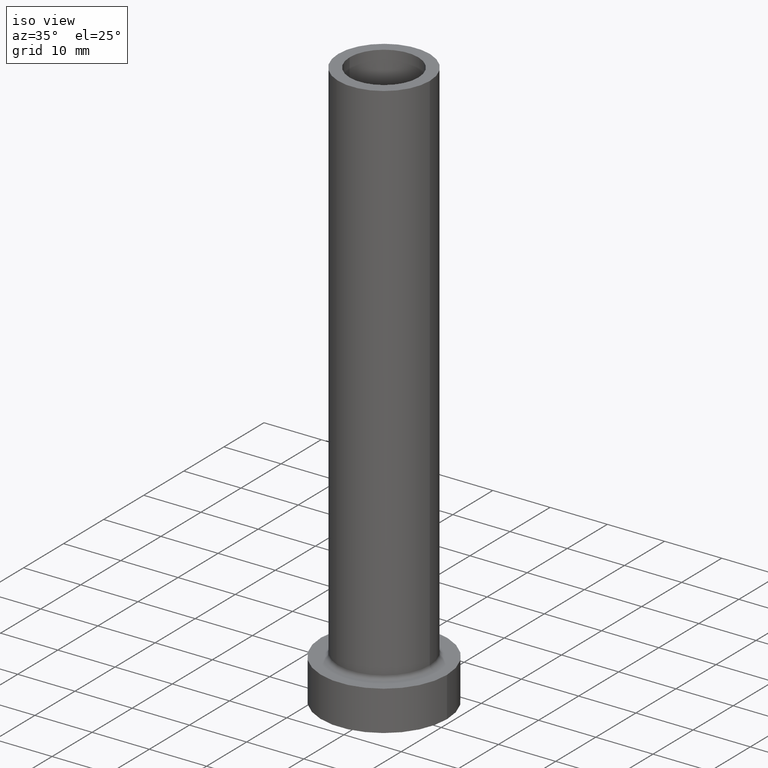
[diagram: clean part render]
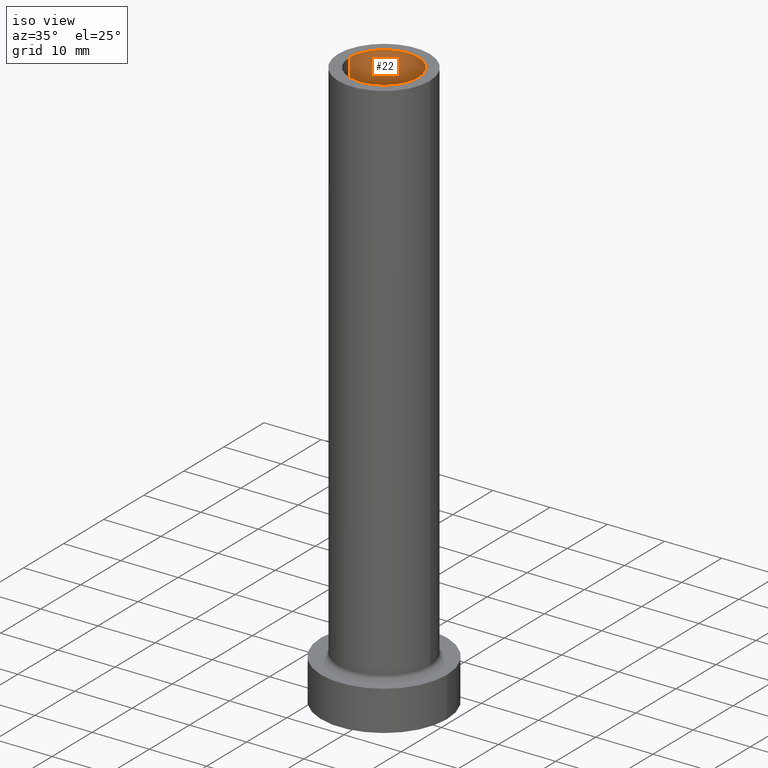
[diagram: same view with one face highlighted and labeled with its STEP entity id]
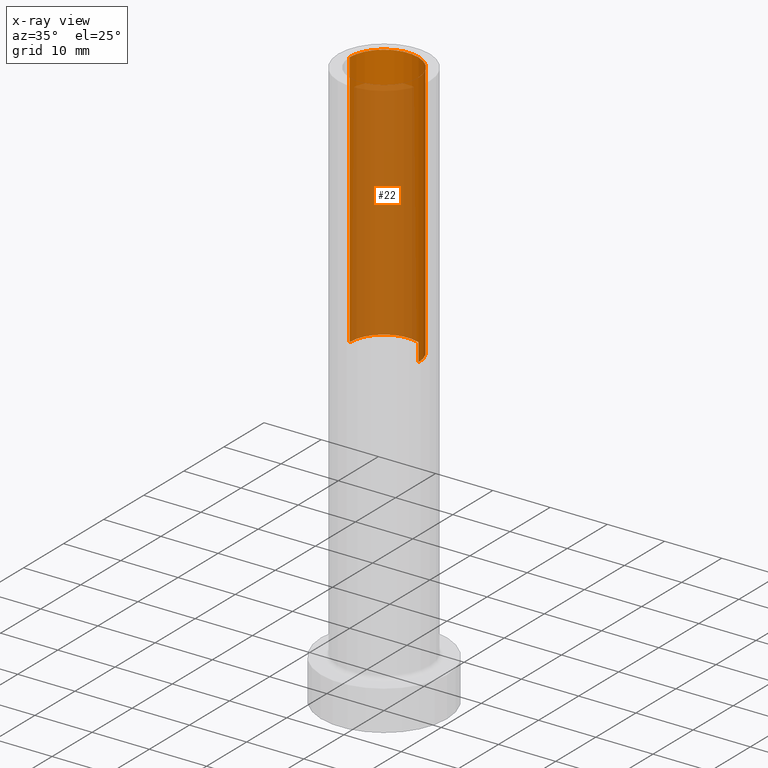
[diagram: x-ray of the same camera — body ghosted, the highlighted face saturated]
A machine part, iso view. The second image highlights one B-rep face of the part: STEP entity #22.
The next image is the same camera in x-ray: the body ghosted, the highlighted face saturated — about 72% of this face is hidden behind the body in this view.
In plain terms, the highlighted cylindrical surface (partial cylindrical patch) has radius 6 mm, axis along (0, 0, -1).
Its self-contained STEP definition (entity closure, byte-faithful):
#9 = EDGE_LOOP ( 'NONE', ( #370, #77, #383, #232 ) ) ;
#10 = VECTOR ( 'NONE', #273, 1000.000000000000000 ) ;
#22 = ADVANCED_FACE ( 'NONE', ( #238 ), #341, .F. ) ;
#23 = VERTEX_POINT ( 'NONE', #199 ) ;
#41 = CARTESIAN_POINT ( 'NONE',  ( 0.000000000000000000, 0.000000000000000000, 55.00000000000000711 ) ) ;
#73 = DIRECTION ( 'NONE',  ( 1.000000000000000000, 0.000000000000000000, 0.000000000000000000 ) ) ;
#77 = ORIENTED_EDGE ( 'NONE', *, *, #122, .T. ) ;
#92 = DIRECTION ( 'NONE',  ( -1.000000000000000000, 0.000000000000000000, 0.000000000000000000 ) ) ;
#93 = VECTOR ( 'NONE', #147, 1000.000000000000000 ) ;
#122 = EDGE_CURVE ( 'NONE', #197, #23, #320, .T. ) ;
#147 = DIRECTION ( 'NONE',  ( 0.000000000000000000, 0.000000000000000000, -1.000000000000000000 ) ) ;
#167 = CIRCLE ( 'NONE', #227, 6.000000000000000888 ) ;
#173 = EDGE_CURVE ( 'NONE', #23, #365, #393, .T. ) ;
#190 = DIRECTION ( 'NONE',  ( 0.000000000000000000, 0.000000000000000000, 1.000000000000000000 ) ) ;
#197 = VERTEX_POINT ( 'NONE', #453 ) ;
#198 = CARTESIAN_POINT ( 'NONE',  ( 6.000000000000000888, 7.347880794884119736E-16, 55.00000000000000711 ) ) ;
#199 = CARTESIAN_POINT ( 'NONE',  ( -6.000000000000000888, 0.000000000000000000, 100.0000000000000000 ) ) ;
#227 = AXIS2_PLACEMENT_3D ( 'NONE', #41, #190, #73 ) ;
#232 = ORIENTED_EDGE ( 'NONE', *, *, #277, .F. ) ;
#238 = FACE_OUTER_BOUND ( 'NONE', #9, .T. ) ;
#256 = CARTESIAN_POINT ( 'NONE',  ( 0.000000000000000000, 0.000000000000000000, 100.0000000000000000 ) ) ;
#273 = DIRECTION ( 'NONE',  ( 0.000000000000000000, 0.000000000000000000, -1.000000000000000000 ) ) ;
#277 = EDGE_CURVE ( 'NONE', #437, #365, #167, .T. ) ;
#314 = AXIS2_PLACEMENT_3D ( 'NONE', #440, #408, #92 ) ;
#320 = CIRCLE ( 'NONE', #369, 6.000000000000000888 ) ;
#341 = CYLINDRICAL_SURFACE ( 'NONE', #314, 6.000000000000000888 ) ;
#346 = LINE ( 'NONE', #409, #10 ) ;
#357 = DIRECTION ( 'NONE',  ( 1.000000000000000000, 0.000000000000000000, 0.000000000000000000 ) ) ;
#365 = VERTEX_POINT ( 'NONE', #371 ) ;
#369 = AXIS2_PLACEMENT_3D ( 'NONE', #256, #458, #357 ) ;
#370 = ORIENTED_EDGE ( 'NONE', *, *, #402, .F. ) ;
#371 = CARTESIAN_POINT ( 'NONE',  ( -6.000000000000000888, 0.000000000000000000, 55.00000000000000711 ) ) ;
#383 = ORIENTED_EDGE ( 'NONE', *, *, #173, .T. ) ;
#393 = LINE ( 'NONE', #420, #93 ) ;
#402 = EDGE_CURVE ( 'NONE', #197, #437, #346, .T. ) ;
#408 = DIRECTION ( 'NONE',  ( 0.000000000000000000, 0.000000000000000000, -1.000000000000000000 ) ) ;
#409 = CARTESIAN_POINT ( 'NONE',  ( 6.000000000000000888, 7.347880794884119736E-16, 100.0000000000000000 ) ) ;
#420 = CARTESIAN_POINT ( 'NONE',  ( -6.000000000000000888, 0.000000000000000000, 100.0000000000000000 ) ) ;
#437 = VERTEX_POINT ( 'NONE', #198 ) ;
#440 = CARTESIAN_POINT ( 'NONE',  ( 0.000000000000000000, 0.000000000000000000, 100.0000000000000000 ) ) ;
#453 = CARTESIAN_POINT ( 'NONE',  ( 6.000000000000000888, 7.347880794884119736E-16, 100.0000000000000000 ) ) ;
#458 = DIRECTION ( 'NONE',  ( 0.000000000000000000, 0.000000000000000000, 1.000000000000000000 ) ) ;